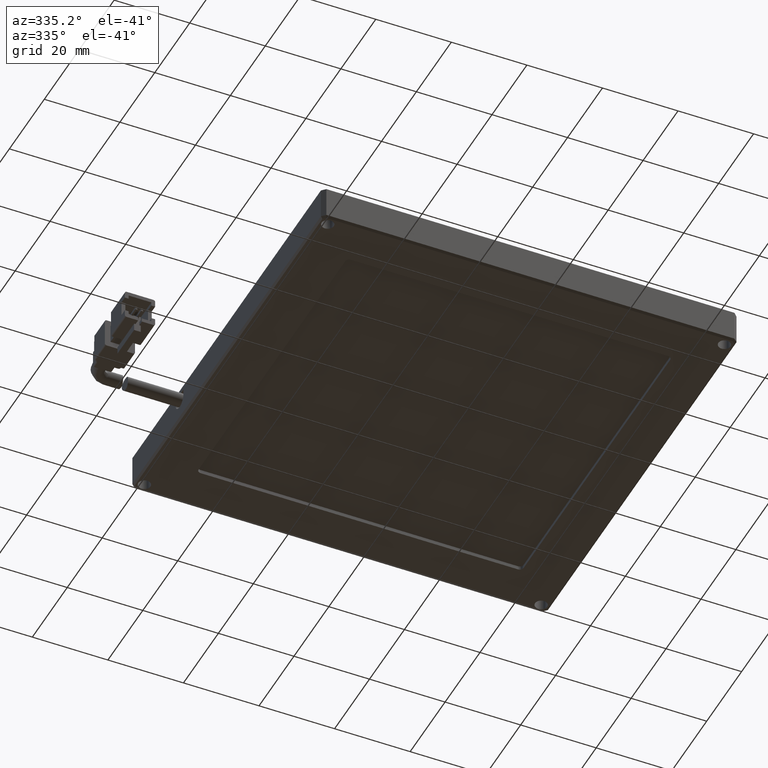
[diagram: clean part render]
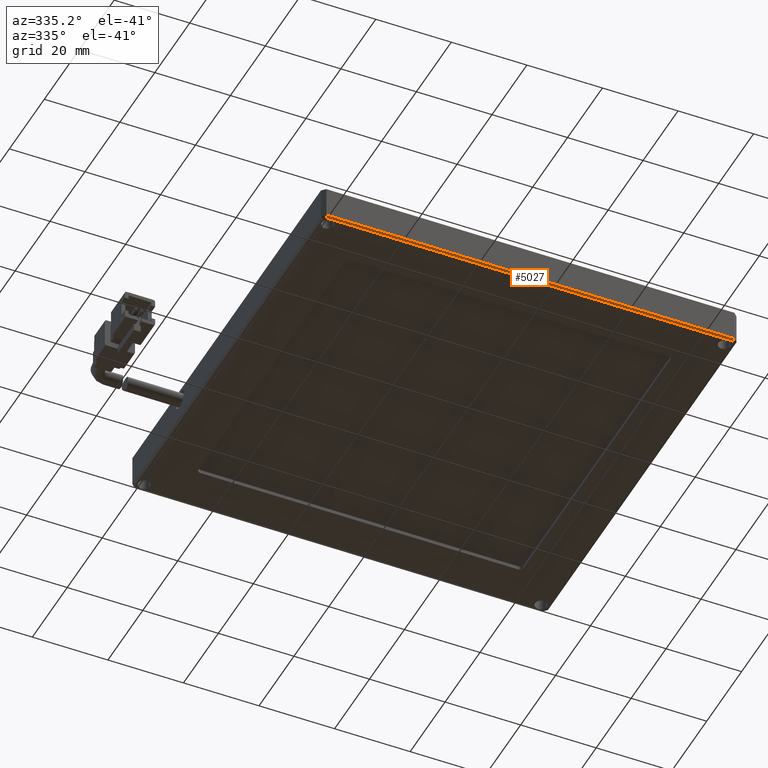
[diagram: same view with one face highlighted and labeled with its STEP entity id]
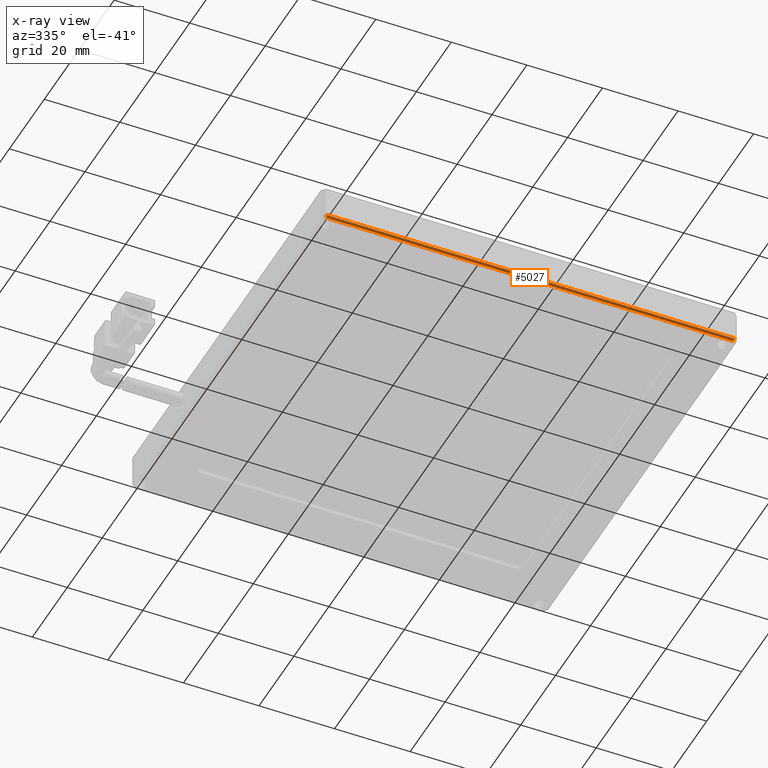
[diagram: x-ray of the same camera — body ghosted, the highlighted face saturated]
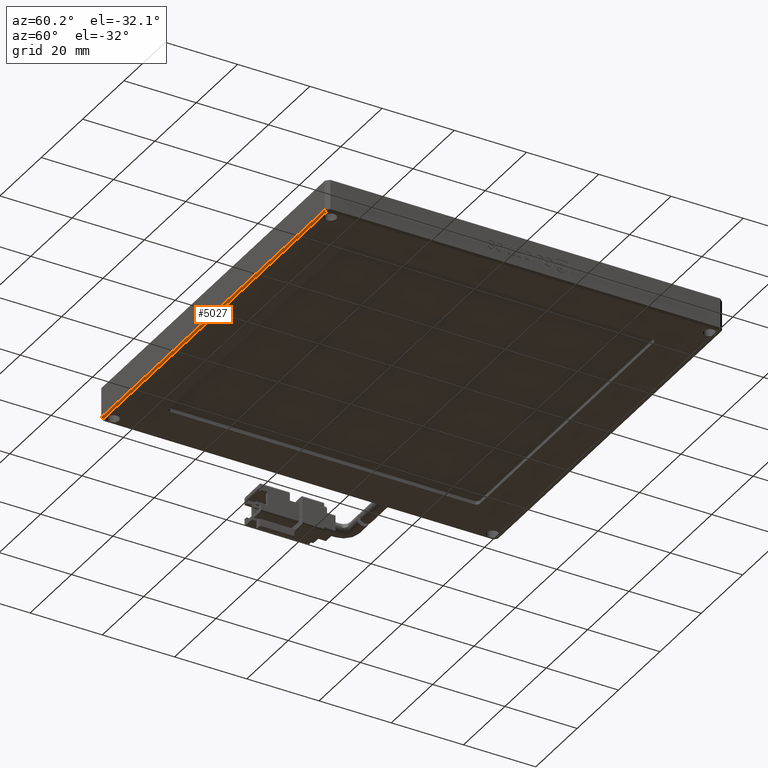
[diagram: same view with one face highlighted and labeled with its STEP entity id]
A machine part, auxiliary view. The second image highlights one B-rep face of the part: STEP entity #5027.
The next image is the same camera in x-ray: the body ghosted, the highlighted face saturated — about 0% of this face is hidden behind the body in this view.
A second angle (auxiliary view) of the same face is appended — the face is thin or edge-on in the first view.
In plain terms, the highlighted planar face has unit normal (0, -0.7071, -0.7071).
Its self-contained STEP definition (entity closure, byte-faithful):
#697 = CARTESIAN_POINT ( 'NONE',  ( -58.93798676597328500, -46.09984726994931500, -7.500000000023733000 ) ) ;
#764 = DIRECTION ( 'NONE',  ( -1.000000000000000000, 0.0000000000000000000, 0.0000000000000000000 ) ) ;
#802 = EDGE_CURVE ( 'NONE', #10926, #16093, #16870, .T. ) ;
#1120 = EDGE_CURVE ( 'NONE', #6024, #11825, #10637, .T. ) ;
#1334 = CARTESIAN_POINT ( 'NONE',  ( -61.30509354716000600, -46.73213862594999300, -6.867708644026999200 ) ) ;
#1870 = FACE_OUTER_BOUND ( 'NONE', #16368, .T. ) ;
#2014 = VECTOR ( 'NONE', #764, 1000.000000000000000 ) ;
#2700 = DIRECTION ( 'NONE',  ( 0.0000000000000000000, 0.7071067811897842100, -0.7071067811833107200 ) ) ;
#2783 = CARTESIAN_POINT ( 'NONE',  ( 48.64779967164027900, -46.09984726994930800, -7.500000000023733900 ) ) ;
#3379 = CARTESIAN_POINT ( 'NONE',  ( -59.14509354715928400, -46.59984726995006100, -7.000000000024730400 ) ) ;
#3383 = CARTESIAN_POINT ( 'NONE',  ( -5.145093547159997400, -46.09984726994996200, -7.500000000023999500 ) ) ;
#3863 = ORIENTED_EDGE ( 'NONE', *, *, #14709, .F. ) ;
#4944 = EDGE_CURVE ( 'NONE', #11825, #10926, #9570, .T. ) ;
#5027 = ADVANCED_FACE ( 'NONE', ( #1870 ), #13674, .T. ) ;
#5228 = DIRECTION ( 'NONE',  ( -1.000000000000000000, 0.0000000000000000000, 0.0000000000000000000 ) ) ;
#5568 = CARTESIAN_POINT ( 'NONE',  ( 48.85490645284423300, -46.59984726995021700, -7.000000000024218000 ) ) ;
#6024 = VERTEX_POINT ( 'NONE', #2783 ) ;
#6547 = DIRECTION ( 'NONE',  ( 0.2810846377143121900, 0.6785983445490576500, -0.6785983445428468400 ) ) ;
#7998 = DIRECTION ( 'NONE',  ( 0.2810846377306096500, -0.6785983445456829100, 0.6785983445394708800 ) ) ;
#8951 = ORIENTED_EDGE ( 'NONE', *, *, #4944, .T. ) ;
#9433 = VECTOR ( 'NONE', #6547, 1000.000000000000100 ) ;
#9570 = LINE ( 'NONE', #14895, #12832 ) ;
#10637 = LINE ( 'NONE', #17797, #14345 ) ;
#10903 = DIRECTION ( 'NONE',  ( 0.0000000000000000000, -0.7071067811833108300, -0.7071067811897843200 ) ) ;
#10926 = VERTEX_POINT ( 'NONE', #3379 ) ;
#11131 = ORIENTED_EDGE ( 'NONE', *, *, #1120, .T. ) ;
#11825 = VERTEX_POINT ( 'NONE', #5568 ) ;
#12832 = VECTOR ( 'NONE', #5228, 1000.000000000000000 ) ;
#13092 = ORIENTED_EDGE ( 'NONE', *, *, #802, .T. ) ;
#13674 = PLANE ( 'NONE',  #16255 ) ;
#14345 = VECTOR ( 'NONE', #7998, 1000.000000000000100 ) ;
#14709 = EDGE_CURVE ( 'NONE', #6024, #16093, #16282, .T. ) ;
#14895 = CARTESIAN_POINT ( 'NONE',  ( -5.145093547159993900, -46.59984726994998300, -7.000000000023993300 ) ) ;
#15283 = CARTESIAN_POINT ( 'NONE',  ( -59.14509354716000200, -46.59984726995216400, -7.000000000023615800 ) ) ;
#16093 = VERTEX_POINT ( 'NONE', #697 ) ;
#16255 = AXIS2_PLACEMENT_3D ( 'NONE', #1334, #10903, #2700 ) ;
#16282 = LINE ( 'NONE', #3383, #2014 ) ;
#16368 = EDGE_LOOP ( 'NONE', ( #11131, #8951, #13092, #3863 ) ) ;
#16870 = LINE ( 'NONE', #15283, #9433 ) ;
#17797 = CARTESIAN_POINT ( 'NONE',  ( 48.64779967164000100, -46.09984726994781600, -7.500000000023391100 ) ) ;